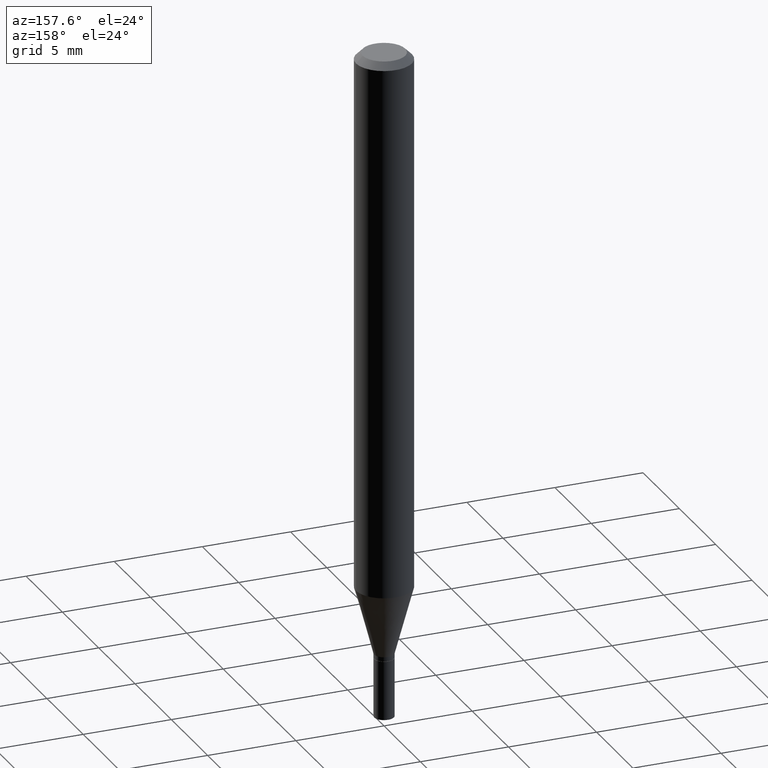
[diagram: clean part render]
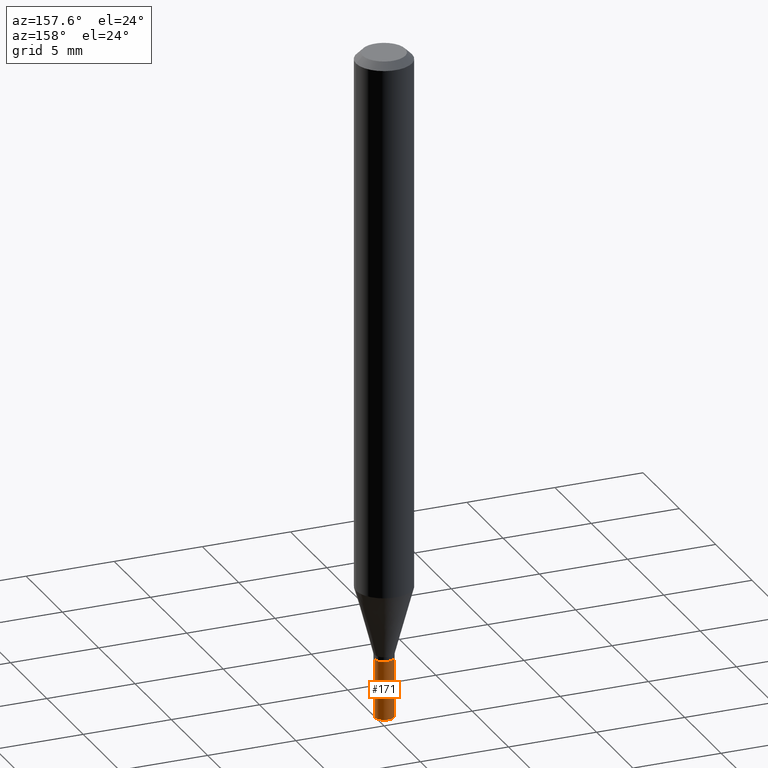
[diagram: same view with one face highlighted and labeled with its STEP entity id]
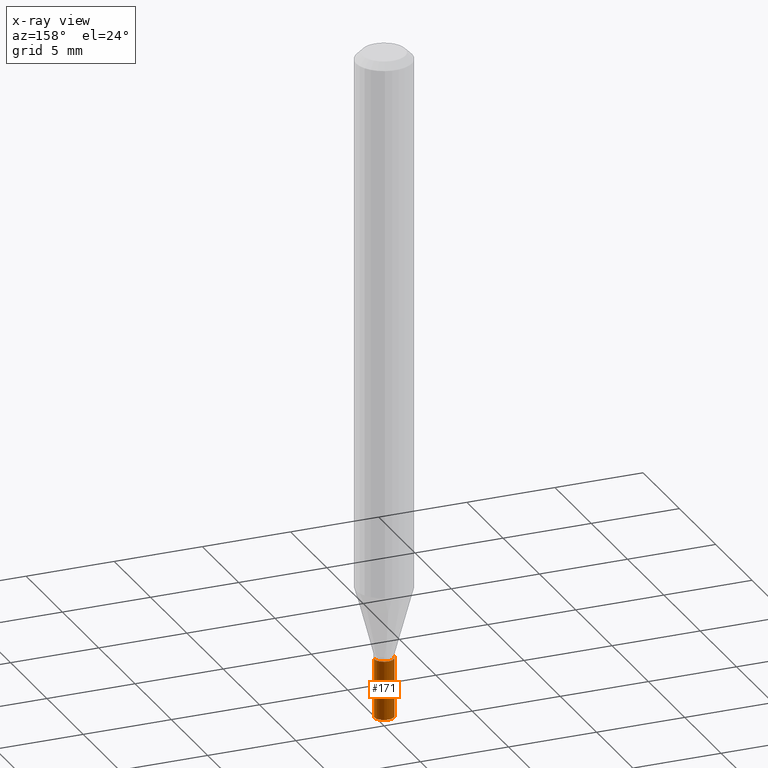
[diagram: x-ray of the same camera — body ghosted, the highlighted face saturated]
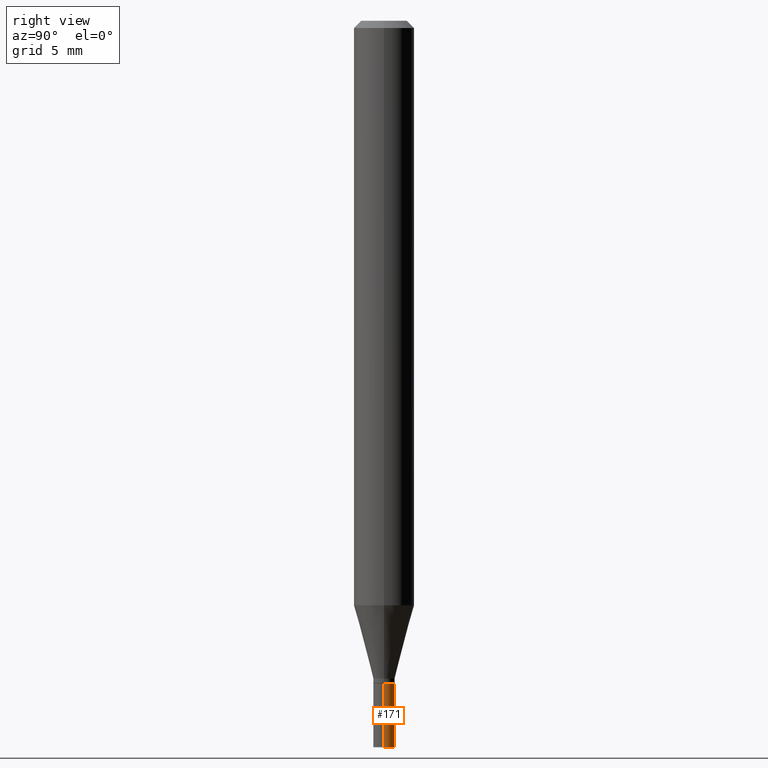
[diagram: same view with one face highlighted and labeled with its STEP entity id]
A machine part, auxiliary view. The second image highlights one B-rep face of the part: STEP entity #171.
The next image is the same camera in x-ray: the body ghosted, the highlighted face saturated — about 0% of this face is hidden behind the body in this view.
A second angle (right view) of the same face is appended — the face is thin or edge-on in the first view.
In plain terms, the highlighted cylindrical surface (edge-blend (fillet) strip) has radius 0.5588 mm, axis along (-0, 0, 1).
Its self-contained STEP definition (entity closure, byte-faithful):
#11 = DIRECTION ( 'NONE',  ( -2.445468806185136877E-29, 3.491481338843145188E-15, 1.000000000000000000 ) ) ;
#24 = LINE ( 'NONE', #241, #221 ) ;
#35 = CARTESIAN_POINT ( 'NONE',  ( -0.02199999999999999872, -4.850464838033848848E-15, -1.500000000000000222 ) ) ;
#40 = LINE ( 'NONE', #324, #154 ) ;
#43 = CARTESIAN_POINT ( 'NONE',  ( 3.668203209277704895E-29, -5.237222008264718177E-15, -1.500000000000000222 ) ) ;
#44 = CARTESIAN_POINT ( 'NONE',  ( 0.000000000000000000, 0.000000000000000000, 0.000000000000000000 ) ) ;
#75 = CARTESIAN_POINT ( 'NONE',  ( -0.02199999999999999872, -4.850464838033848848E-15, -1.368000000000000105 ) ) ;
#102 = VERTEX_POINT ( 'NONE', #405 ) ;
#104 = EDGE_CURVE ( 'NONE', #102, #294, #24, .T. ) ;
#121 = DIRECTION ( 'NONE',  ( -2.445468806185136877E-29, 3.491481338843145188E-15, 1.000000000000000000 ) ) ;
#126 = VERTEX_POINT ( 'NONE', #75 ) ;
#130 = AXIS2_PLACEMENT_3D ( 'NONE', #43, #356, #184 ) ;
#131 = VERTEX_POINT ( 'NONE', #35 ) ;
#138 = ORIENTED_EDGE ( 'NONE', *, *, #104, .F. ) ;
#154 = VECTOR ( 'NONE', #11, 39.37007874015748143 ) ;
#169 = CIRCLE ( 'NONE', #431, 0.02199999999999999872 ) ;
#171 = ADVANCED_FACE ( 'NONE', ( #225 ), #361, .T. ) ;
#184 = DIRECTION ( 'NONE',  ( 1.000000000000000000, -6.982962677686245411E-15, 0.000000000000000000 ) ) ;
#185 = DIRECTION ( 'NONE',  ( -2.445468806185136597E-29, 3.491481338843145583E-15, 1.000000000000000000 ) ) ;
#209 = AXIS2_PLACEMENT_3D ( 'NONE', #44, #185, #254 ) ;
#212 = ORIENTED_EDGE ( 'NONE', *, *, #359, .T. ) ;
#216 = EDGE_CURVE ( 'NONE', #294, #126, #169, .T. ) ;
#221 = VECTOR ( 'NONE', #121, 39.37007874015748143 ) ;
#225 = FACE_OUTER_BOUND ( 'NONE', #317, .T. ) ;
#228 = CARTESIAN_POINT ( 'NONE',  ( 3.345401326861266963E-29, -4.776346471537423880E-15, -1.368000000000000105 ) ) ;
#240 = ORIENTED_EDGE ( 'NONE', *, *, #216, .F. ) ;
#241 = CARTESIAN_POINT ( 'NONE',  ( 0.02199999999999999872, -1.536251789090978361E-16, 1.072758890675105930E-30 ) ) ;
#254 = DIRECTION ( 'NONE',  ( 1.000000000000000000, -6.982962677686265922E-15, 4.876176775795936353E-29 ) ) ;
#294 = VERTEX_POINT ( 'NONE', #327 ) ;
#317 = EDGE_LOOP ( 'NONE', ( #397, #212, #240, #138 ) ) ;
#324 = CARTESIAN_POINT ( 'NONE',  ( -0.02199999999999999872, 1.563194018672220318E-16, -1.082165719856079240E-30 ) ) ;
#327 = CARTESIAN_POINT ( 'NONE',  ( 0.02199999999999999872, -4.929971650446520927E-15, -1.368000000000000105 ) ) ;
#349 = EDGE_CURVE ( 'NONE', #102, #131, #364, .T. ) ;
#356 = DIRECTION ( 'NONE',  ( -2.445468806185136597E-29, 3.491481338843145583E-15, 1.000000000000000000 ) ) ;
#359 = EDGE_CURVE ( 'NONE', #131, #126, #40, .T. ) ;
#361 = CYLINDRICAL_SURFACE ( 'NONE', #209, 0.02199999999999999872 ) ;
#363 = DIRECTION ( 'NONE',  ( -2.445468806185136597E-29, 3.491481338843145583E-15, 1.000000000000000000 ) ) ;
#364 = CIRCLE ( 'NONE', #130, 0.02199999999999999872 ) ;
#397 = ORIENTED_EDGE ( 'NONE', *, *, #349, .T. ) ;
#403 = DIRECTION ( 'NONE',  ( 1.000000000000000000, -6.982962677686245411E-15, 0.000000000000000000 ) ) ;
#405 = CARTESIAN_POINT ( 'NONE',  ( 0.02199999999999999872, -5.390847187173816013E-15, -1.500000000000000222 ) ) ;
#431 = AXIS2_PLACEMENT_3D ( 'NONE', #228, #363, #403 ) ;